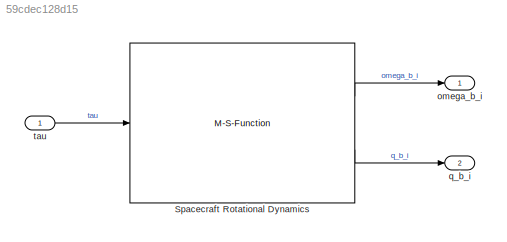
MODEL slx_59cdec128d15
KIND model
CONFIG AbsTol = auto
CONFIG EnableMultiTasking = off
CONFIG FixedStep = auto
CONFIG MaxStep = auto
CONFIG MinStep = auto
CONFIG RelTol = 1e-7
CONFIG SampleTimeConstraint = Unconstrained
CONFIG Solver = ode45
CONFIG SolverName = ode45
CONFIG StartTime = 0.0
CONFIG StopTime = 1000
BLOCK [M-S-Function] Spacecraft Rotational Dynamics
  FunctionName = CubeSatSfun
  Parameters = x_0,I
  Ports = [1, 2]
BLOCK [Outport] omega_b_i
  IconDisplay = Port number
  SampleTime = 0
BLOCK [Outport] q_b_i
  IconDisplay = Port number
  Port = 2
  SampleTime = 0
BLOCK [Inport] tau
  IconDisplay = Port number
  OutDataTypeStr = double
  PortDimensions = 3
  SampleTime = 0
  SamplingMode = Sample based
  SignalType = real
LINE Spacecraft Rotational Dynamics:1 -> omega_b_i:1
LINE Spacecraft Rotational Dynamics:2 -> q_b_i:1
LINE tau:1 -> Spacecraft Rotational Dynamics:1
